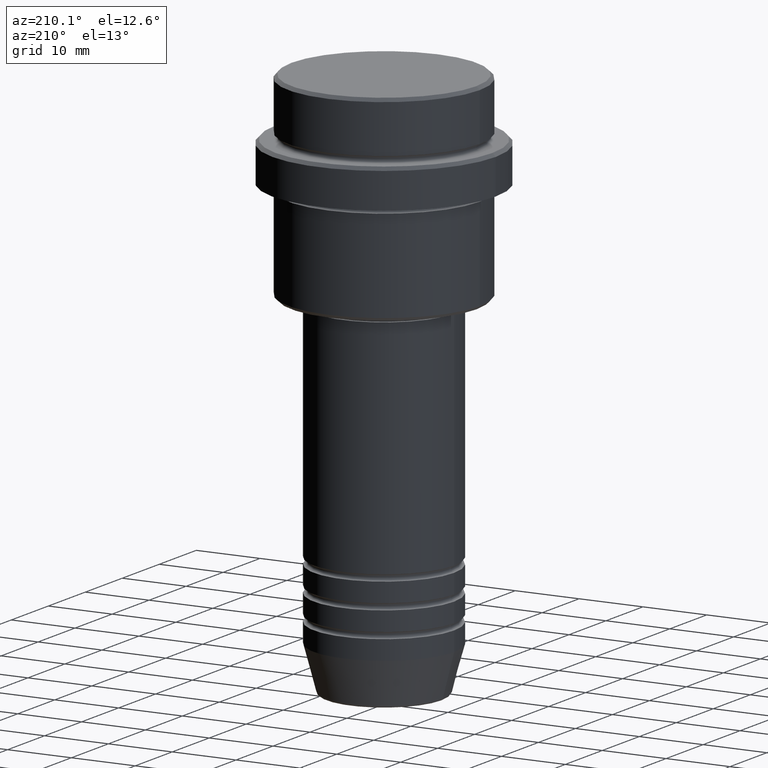
[diagram: clean part render]
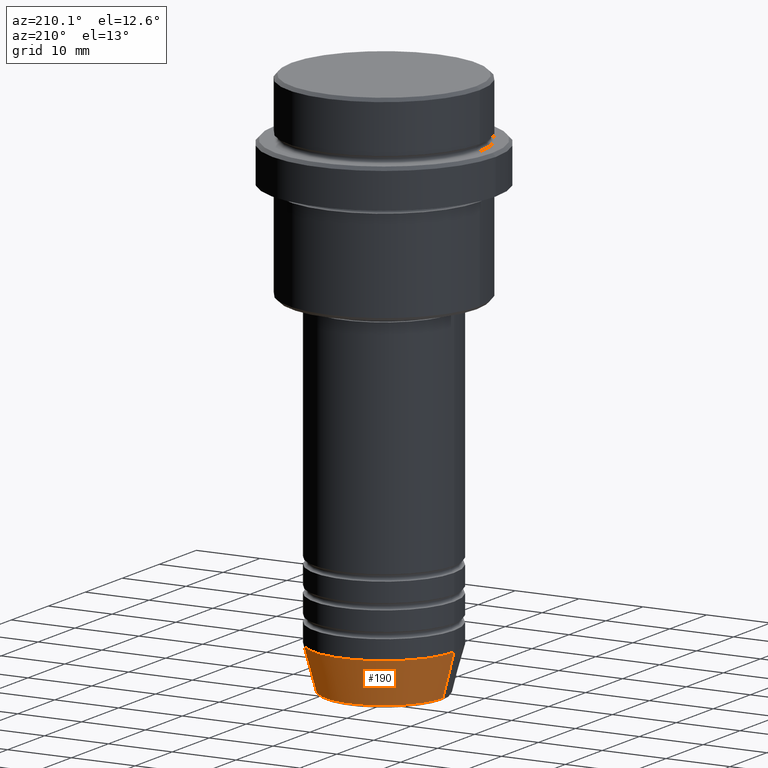
[diagram: same view with one face highlighted and labeled with its STEP entity id]
A machine part, auxiliary view. The second image highlights one B-rep face of the part: STEP entity #190.
In plain terms, the highlighted conical surface has half-angle 15 deg.
Its self-contained STEP definition (entity closure, byte-faithful):
#16 = CARTESIAN_POINT ( 'NONE',  ( 9.223655072137194821, 0.000000000000000000, -85.62940952255124216 ) ) ;
#99 = CONICAL_SURFACE ( 'NONE', #659, 11.00000000000000000, 0.2617993877991500740 ) ;
#126 = ORIENTED_EDGE ( 'NONE', *, *, #1013, .T. ) ;
#147 = CIRCLE ( 'NONE', #1049, 11.00000000000000000 ) ;
#157 = CARTESIAN_POINT ( 'NONE',  ( -9.223655072137194821, 1.238341722557647399E-15, -85.62940952255124216 ) ) ;
#190 = ADVANCED_FACE ( 'NONE', ( #862 ), #99, .T. ) ;
#199 = EDGE_CURVE ( 'NONE', #687, #883, #997, .T. ) ;
#207 = CARTESIAN_POINT ( 'NONE',  ( -11.00000000000000000, 1.347111479062088405E-15, -79.00000000000000000 ) ) ;
#212 = DIRECTION ( 'NONE',  ( -0.000000000000000000, -0.000000000000000000, 1.000000000000000000 ) ) ;
#260 = DIRECTION ( 'NONE',  ( 0.2588190451025213501, 0.000000000000000000, 0.9659258262890680902 ) ) ;
#311 = DIRECTION ( 'NONE',  ( -0.000000000000000000, -0.000000000000000000, 1.000000000000000000 ) ) ;
#349 = ORIENTED_EDGE ( 'NONE', *, *, #387, .F. ) ;
#368 = DIRECTION ( 'NONE',  ( -0.000000000000000000, -0.000000000000000000, 1.000000000000000000 ) ) ;
#387 = EDGE_CURVE ( 'NONE', #687, #939, #688, .T. ) ;
#412 = AXIS2_PLACEMENT_3D ( 'NONE', #437, #212, #1056 ) ;
#437 = CARTESIAN_POINT ( 'NONE',  ( 0.000000000000000000, 0.000000000000000000, -85.62940952255124216 ) ) ;
#480 = CARTESIAN_POINT ( 'NONE',  ( 11.00000000000000000, 0.000000000000000000, -79.00000000000000000 ) ) ;
#483 = DIRECTION ( 'NONE',  ( 1.000000000000000000, 0.000000000000000000, 0.000000000000000000 ) ) ;
#530 = CARTESIAN_POINT ( 'NONE',  ( 11.00000000000000000, 0.000000000000000000, -79.00000000000000000 ) ) ;
#562 = VERTEX_POINT ( 'NONE', #207 ) ;
#658 = VECTOR ( 'NONE', #1088, 1000.000000000000000 ) ;
#659 = AXIS2_PLACEMENT_3D ( 'NONE', #1061, #311, #1048 ) ;
#676 = EDGE_LOOP ( 'NONE', ( #746, #126, #841, #349 ) ) ;
#687 = VERTEX_POINT ( 'NONE', #16 ) ;
#688 = LINE ( 'NONE', #480, #972 ) ;
#746 = ORIENTED_EDGE ( 'NONE', *, *, #199, .T. ) ;
#779 = LINE ( 'NONE', #1208, #658 ) ;
#841 = ORIENTED_EDGE ( 'NONE', *, *, #1082, .F. ) ;
#862 = FACE_OUTER_BOUND ( 'NONE', #676, .T. ) ;
#883 = VERTEX_POINT ( 'NONE', #157 ) ;
#939 = VERTEX_POINT ( 'NONE', #530 ) ;
#972 = VECTOR ( 'NONE', #260, 1000.000000000000000 ) ;
#997 = CIRCLE ( 'NONE', #412, 9.223655072137194821 ) ;
#1013 = EDGE_CURVE ( 'NONE', #883, #562, #779, .T. ) ;
#1048 = DIRECTION ( 'NONE',  ( 1.000000000000000000, 0.000000000000000000, 0.000000000000000000 ) ) ;
#1049 = AXIS2_PLACEMENT_3D ( 'NONE', #1323, #368, #483 ) ;
#1056 = DIRECTION ( 'NONE',  ( 1.000000000000000000, 0.000000000000000000, 0.000000000000000000 ) ) ;
#1061 = CARTESIAN_POINT ( 'NONE',  ( 0.000000000000000000, 0.000000000000000000, -79.00000000000000000 ) ) ;
#1082 = EDGE_CURVE ( 'NONE', #939, #562, #147, .T. ) ;
#1088 = DIRECTION ( 'NONE',  ( -0.2588190451025213501, 3.169619151431772337E-17, 0.9659258262890680902 ) ) ;
#1208 = CARTESIAN_POINT ( 'NONE',  ( -11.00000000000000000, 1.347111479062088405E-15, -79.00000000000000000 ) ) ;
#1323 = CARTESIAN_POINT ( 'NONE',  ( 0.000000000000000000, 0.000000000000000000, -79.00000000000000000 ) ) ;